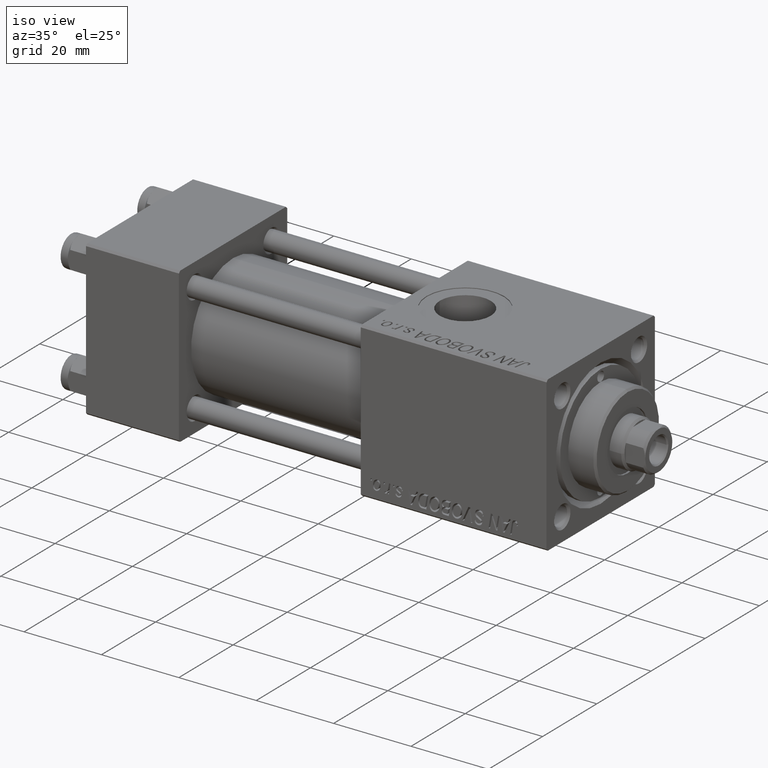
[diagram: clean part render]
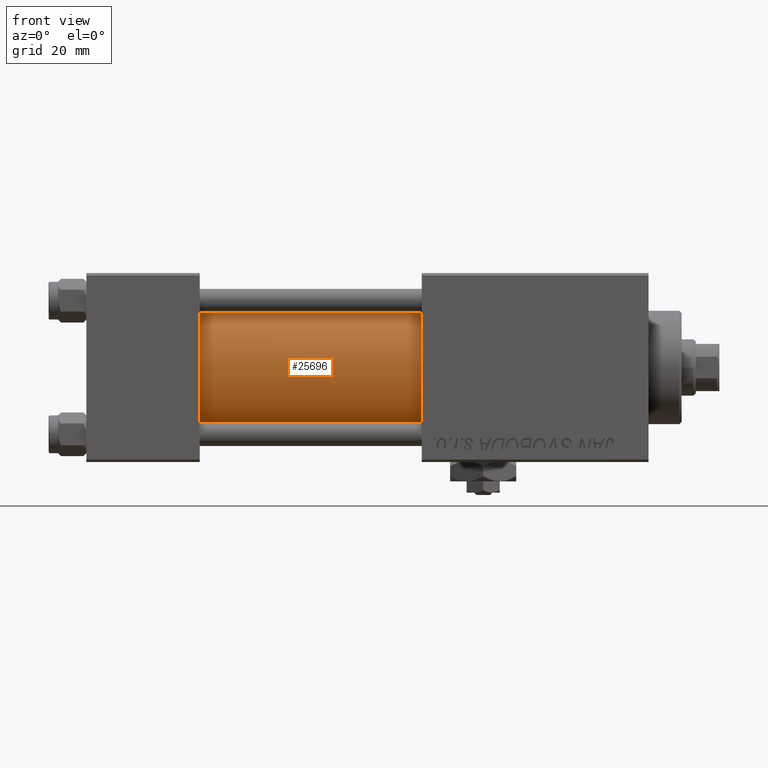
[diagram: tour spotlight — one face highlighted and labeled with its STEP entity id]
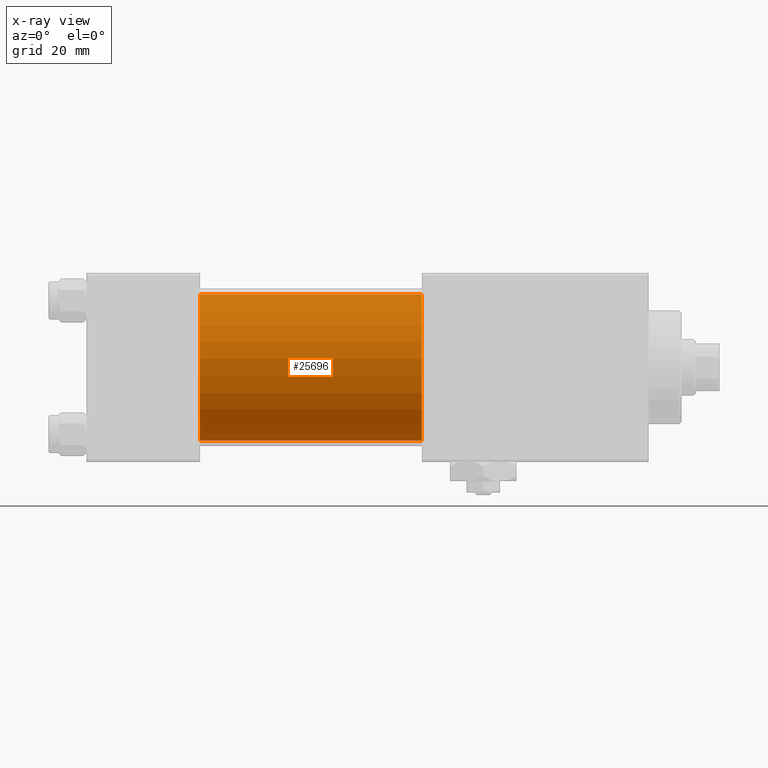
[diagram: x-ray of the same camera — body ghosted, this tour face saturated]
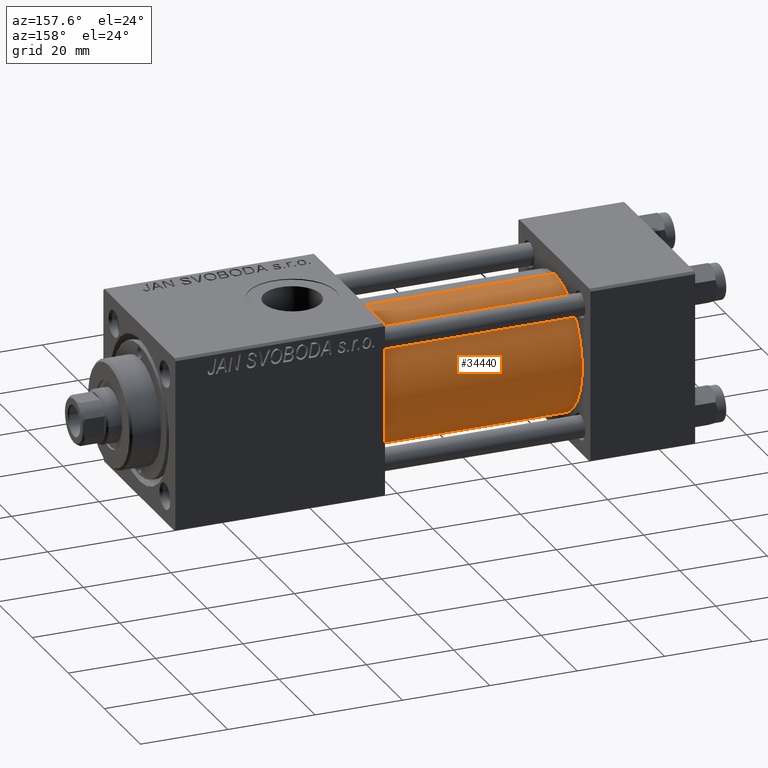
[diagram: tour spotlight — one face highlighted and labeled with its STEP entity id]
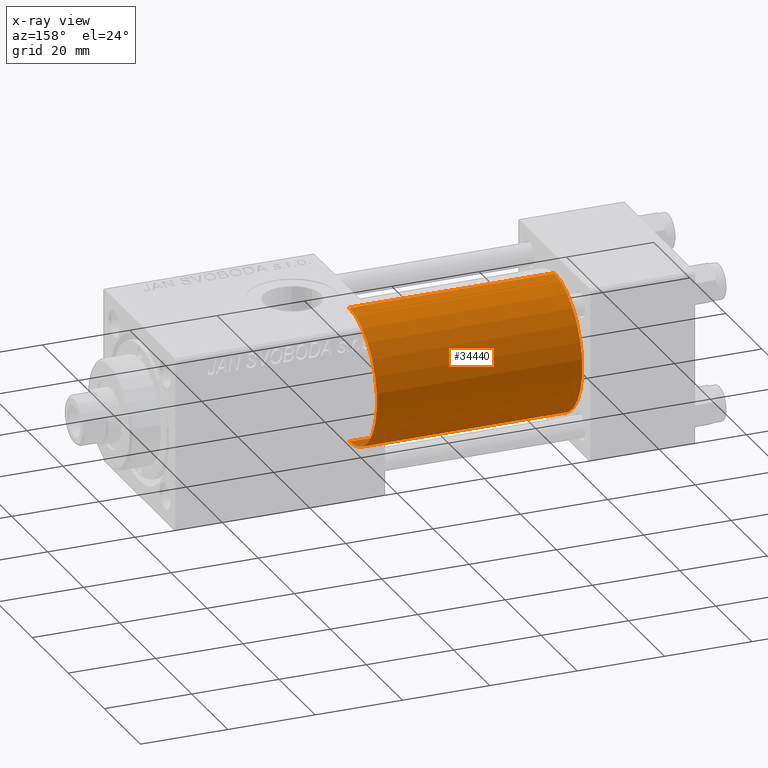
[diagram: x-ray of the same camera — body ghosted, this tour face saturated]
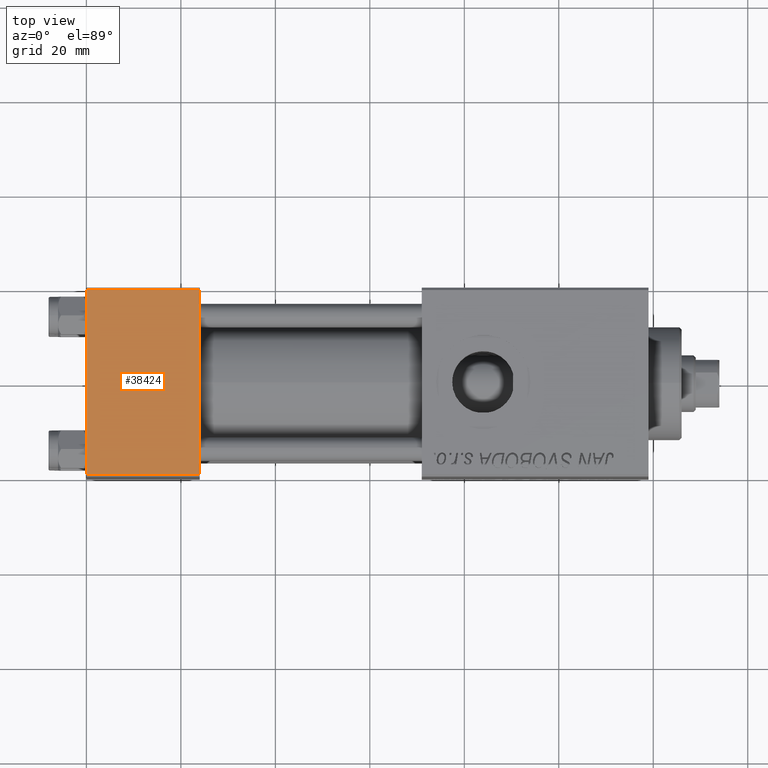
[diagram: tour spotlight — one face highlighted and labeled with its STEP entity id]
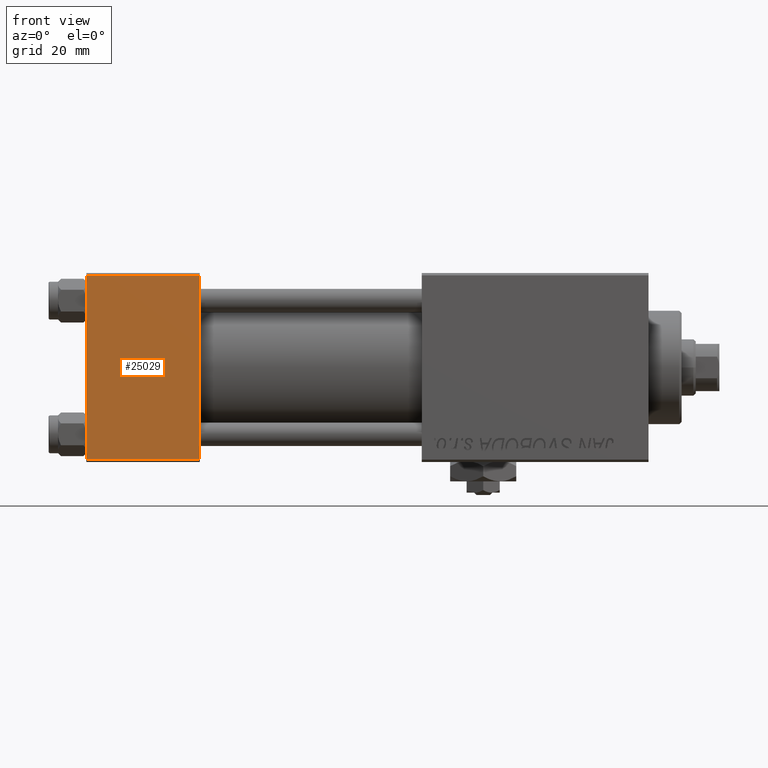
[diagram: tour spotlight — one face highlighted and labeled with its STEP entity id]
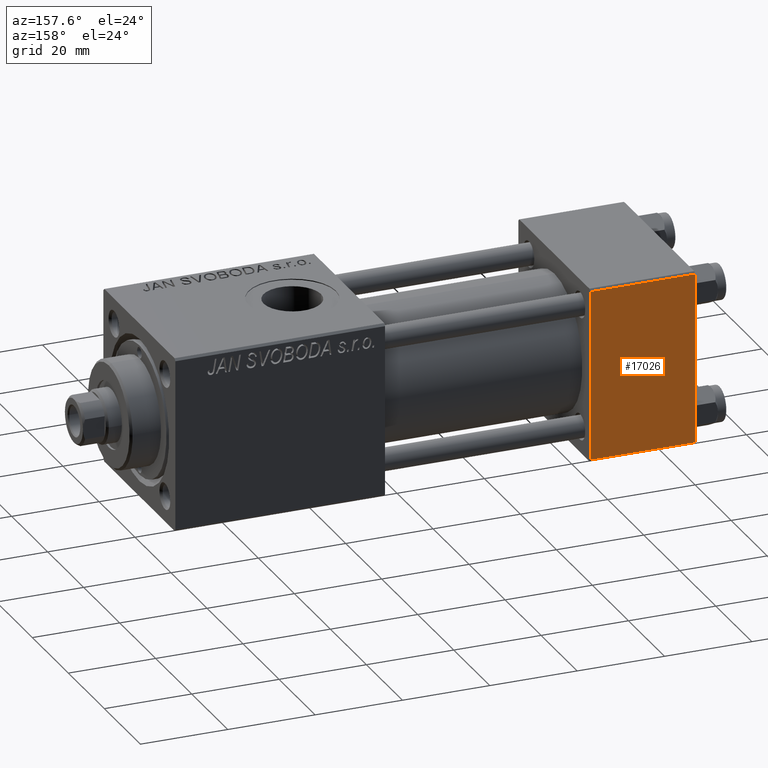
[diagram: tour spotlight — one face highlighted and labeled with its STEP entity id]
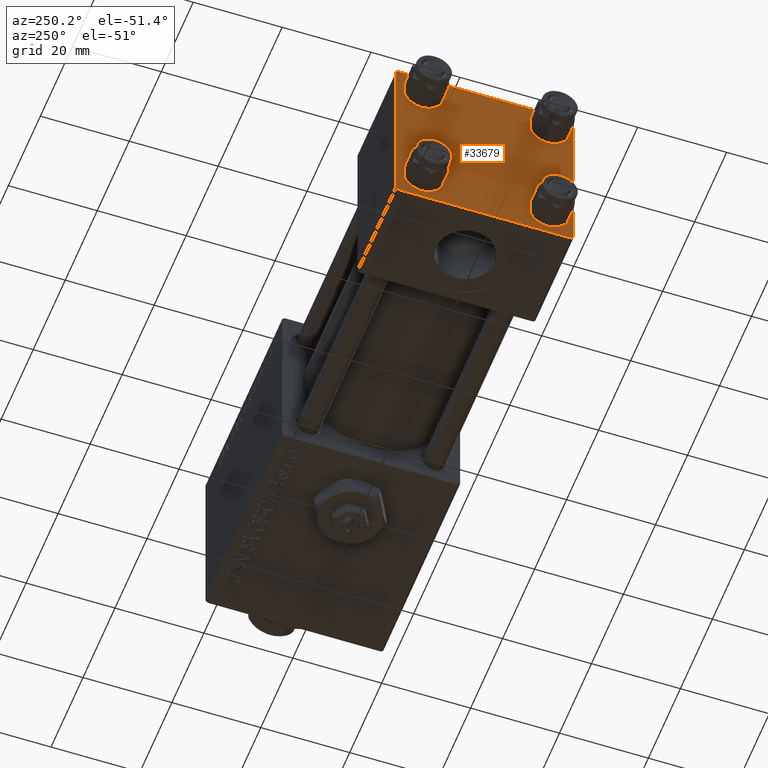
[diagram: tour spotlight — one face highlighted and labeled with its STEP entity id]
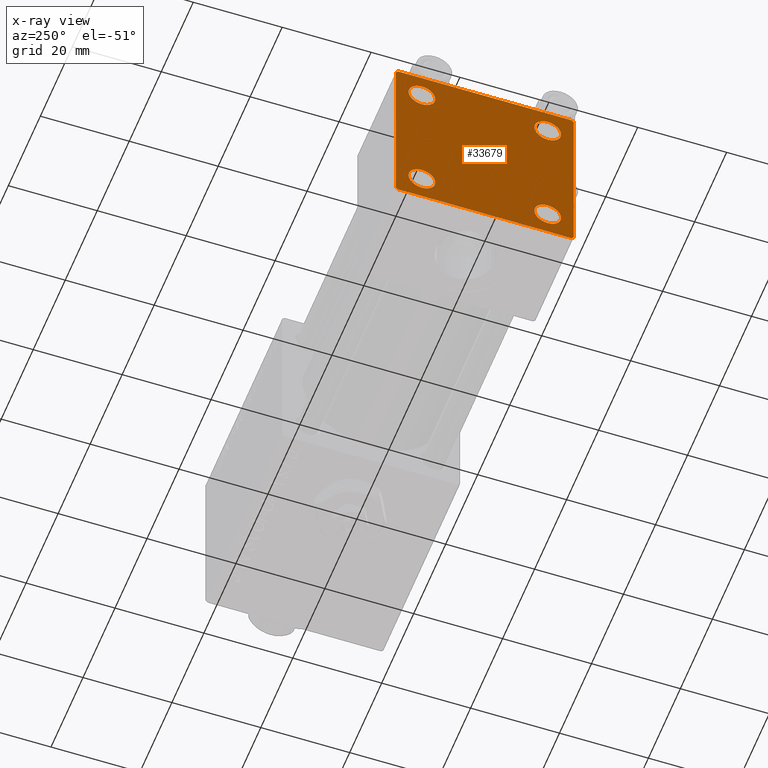
[diagram: x-ray of the same camera — body ghosted, this tour face saturated]
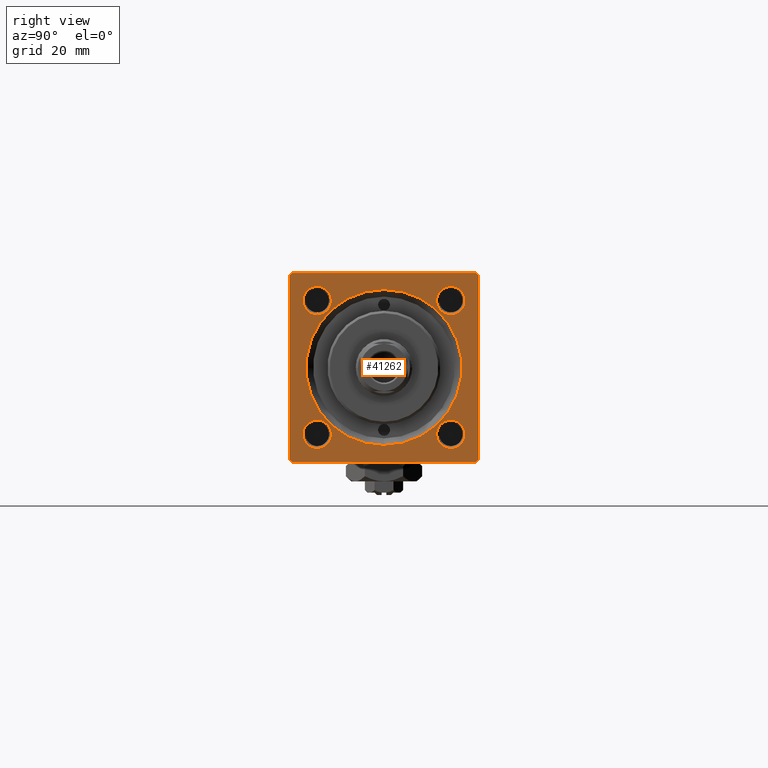
[diagram: tour spotlight — one face highlighted and labeled with its STEP entity id]
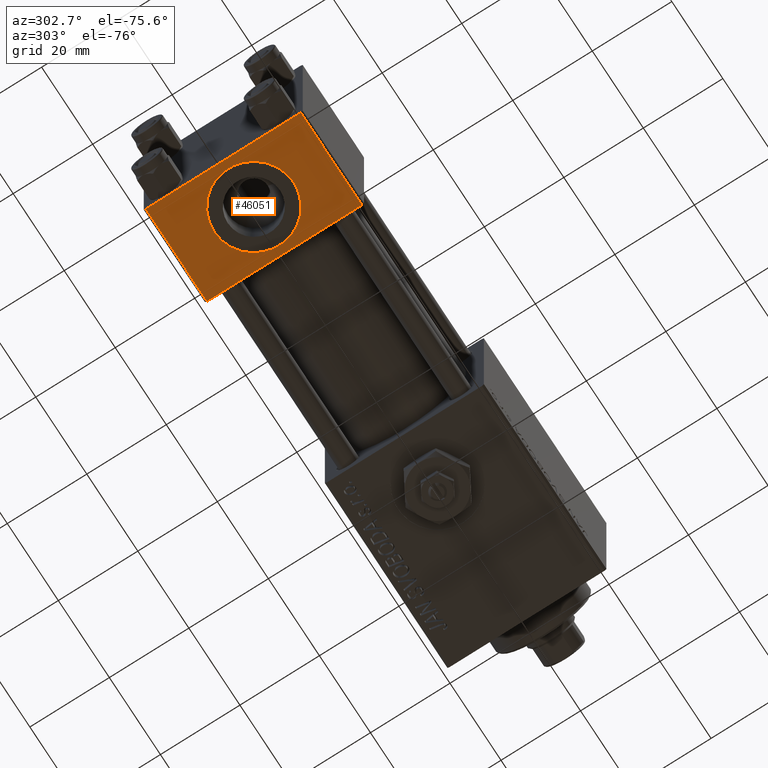
[diagram: tour spotlight — one face highlighted and labeled with its STEP entity id]
A machine part: a face-by-face anatomy tour. The part has 1201 B-rep faces; the first image is the clean iso view, then the 8 largest visible faces are spotlighted one at a time (largest first), each with its STEP entity span.

Face 1 — front view, entity #25696. An x-ray twin of the same camera follows (body ghosted, this face saturated) — the face is partly hidden behind the body. In plain terms, the highlighted cylindrical surface (partial cylindrical patch) has radius 15.5 mm, axis along (-1, -0, -0).
Definition (entity closure, byte-faithful):
#2584 = EDGE_CURVE ( 'NONE', #46412, #28854, #25037, .T. ) ;
#3623 = CARTESIAN_POINT ( 'NONE',  ( 24.00000000000000000, -2.602085213965210642E-15, 0.000000000000000000 ) ) ;
#5686 = EDGE_CURVE ( 'NONE', #28854, #25199, #14291, .T. ) ;
#5864 = DIRECTION ( 'NONE',  ( 1.000000000000000000, 0.000000000000000000, 0.000000000000000000 ) ) ;
#6575 = AXIS2_PLACEMENT_3D ( 'NONE', #18745, #5864, #14544 ) ;
#10042 = FACE_OUTER_BOUND ( 'NONE', #28196, .T. ) ;
#10310 = CARTESIAN_POINT ( 'NONE',  ( 71.00000000000001421, -2.602085213965210642E-15, 0.000000000000000000 ) ) ;
#14237 = LINE ( 'NONE', #25797, #38979 ) ;
#14291 = LINE ( 'NONE', #42117, #41760 ) ;
#14544 = DIRECTION ( 'NONE',  ( 0.000000000000000000, 0.000000000000000000, -1.000000000000000000 ) ) ;
#14797 = ORIENTED_EDGE ( 'NONE', *, *, #35212, .T. ) ;
#17805 = ORIENTED_EDGE ( 'NONE', *, *, #2584, .F. ) ;
#18418 = CIRCLE ( 'NONE', #47768, 15.50000000000000000 ) ;
#18745 = CARTESIAN_POINT ( 'NONE',  ( 71.00000000000001421, -2.602085213965210642E-15, 0.000000000000000000 ) ) ;
#19666 = DIRECTION ( 'NONE',  ( 0.000000000000000000, 0.000000000000000000, 1.000000000000000000 ) ) ;
#21421 = AXIS2_PLACEMENT_3D ( 'NONE', #10310, #26066, #42332 ) ;
#21858 = DIRECTION ( 'NONE',  ( -1.000000000000000000, -0.000000000000000000, -0.000000000000000000 ) ) ;
#24128 = DIRECTION ( 'NONE',  ( 1.000000000000000000, 0.000000000000000000, 0.000000000000000000 ) ) ;
#25037 = CIRCLE ( 'NONE', #6575, 15.50000000000000000 ) ;
#25199 = VERTEX_POINT ( 'NONE', #39828 ) ;
#25696 = ADVANCED_FACE ( 'NONE', ( #10042 ), #49455, .T. ) ;
#25797 = CARTESIAN_POINT ( 'NONE',  ( 71.00000000000001421, -2.602085213965210642E-15, 15.50000000000000000 ) ) ;
#26066 = DIRECTION ( 'NONE',  ( -1.000000000000000000, -0.000000000000000000, -0.000000000000000000 ) ) ;
#26262 = ORIENTED_EDGE ( 'NONE', *, *, #5686, .F. ) ;
#26822 = CARTESIAN_POINT ( 'NONE',  ( 71.00000000000001421, -7.038826752868131828E-16, -15.50000000000000000 ) ) ;
#26877 = DIRECTION ( 'NONE',  ( -1.000000000000000000, -0.000000000000000000, -0.000000000000000000 ) ) ;
#28196 = EDGE_LOOP ( 'NONE', ( #26262, #17805, #45951, #14797 ) ) ;
#28854 = VERTEX_POINT ( 'NONE', #26822 ) ;
#32190 = CARTESIAN_POINT ( 'NONE',  ( 71.00000000000001421, -2.602085213965210642E-15, 15.50000000000000000 ) ) ;
#35212 = EDGE_CURVE ( 'NONE', #49985, #25199, #18418, .T. ) ;
#38227 = CARTESIAN_POINT ( 'NONE',  ( 24.00000000000000000, -2.602085213965210642E-15, 15.50000000000000000 ) ) ;
#38979 = VECTOR ( 'NONE', #21858, 1000.000000000000000 ) ;
#39828 = CARTESIAN_POINT ( 'NONE',  ( 24.00000000000000000, -7.038826752868131828E-16, -15.50000000000000000 ) ) ;
#41760 = VECTOR ( 'NONE', #26877, 1000.000000000000000 ) ;
#42117 = CARTESIAN_POINT ( 'NONE',  ( 71.00000000000001421, -7.038826752868131828E-16, -15.50000000000000000 ) ) ;
#42332 = DIRECTION ( 'NONE',  ( 0.000000000000000000, 0.000000000000000000, 1.000000000000000000 ) ) ;
#45951 = ORIENTED_EDGE ( 'NONE', *, *, #51160, .T. ) ;
#46412 = VERTEX_POINT ( 'NONE', #32190 ) ;
#47768 = AXIS2_PLACEMENT_3D ( 'NONE', #3623, #24128, #19666 ) ;
#49455 = CYLINDRICAL_SURFACE ( 'NONE', #21421, 15.50000000000000000 ) ;
#49985 = VERTEX_POINT ( 'NONE', #38227 ) ;
#51160 = EDGE_CURVE ( 'NONE', #46412, #49985, #14237, .T. ) ;

Face 2 — auxiliary view, entity #34440. An x-ray twin of the same camera follows (body ghosted, this face saturated) — the face is partly hidden behind the body. In plain terms, the highlighted cylindrical surface (partial cylindrical patch) has radius 15.5 mm, axis along (-1, -0, -0).
Definition (entity closure, byte-faithful):
#2702 = CYLINDRICAL_SURFACE ( 'NONE', #36864, 15.50000000000000000 ) ;
#2892 = EDGE_CURVE ( 'NONE', #25199, #49985, #19066, .T. ) ;
#3273 = ORIENTED_EDGE ( 'NONE', *, *, #40558, .F. ) ;
#5179 = AXIS2_PLACEMENT_3D ( 'NONE', #17082, #9701, #25731 ) ;
#5686 = EDGE_CURVE ( 'NONE', #28854, #25199, #14291, .T. ) ;
#9701 = DIRECTION ( 'NONE',  ( 1.000000000000000000, 0.000000000000000000, 0.000000000000000000 ) ) ;
#12566 = DIRECTION ( 'NONE',  ( 0.000000000000000000, 0.000000000000000000, 1.000000000000000000 ) ) ;
#14237 = LINE ( 'NONE', #25797, #38979 ) ;
#14291 = LINE ( 'NONE', #42117, #41760 ) ;
#15704 = DIRECTION ( 'NONE',  ( 1.000000000000000000, 0.000000000000000000, 0.000000000000000000 ) ) ;
#17082 = CARTESIAN_POINT ( 'NONE',  ( 71.00000000000001421, -2.602085213965210642E-15, 0.000000000000000000 ) ) ;
#19042 = ORIENTED_EDGE ( 'NONE', *, *, #5686, .T. ) ;
#19066 = CIRCLE ( 'NONE', #29143, 15.50000000000000000 ) ;
#21858 = DIRECTION ( 'NONE',  ( -1.000000000000000000, -0.000000000000000000, -0.000000000000000000 ) ) ;
#25199 = VERTEX_POINT ( 'NONE', #39828 ) ;
#25731 = DIRECTION ( 'NONE',  ( 0.000000000000000000, 0.000000000000000000, -1.000000000000000000 ) ) ;
#25797 = CARTESIAN_POINT ( 'NONE',  ( 71.00000000000001421, -2.602085213965210642E-15, 15.50000000000000000 ) ) ;
#26667 = ORIENTED_EDGE ( 'NONE', *, *, #2892, .T. ) ;
#26822 = CARTESIAN_POINT ( 'NONE',  ( 71.00000000000001421, -7.038826752868131828E-16, -15.50000000000000000 ) ) ;
#26877 = DIRECTION ( 'NONE',  ( -1.000000000000000000, -0.000000000000000000, -0.000000000000000000 ) ) ;
#28854 = VERTEX_POINT ( 'NONE', #26822 ) ;
#29143 = AXIS2_PLACEMENT_3D ( 'NONE', #51698, #15704, #12566 ) ;
#30563 = CARTESIAN_POINT ( 'NONE',  ( 71.00000000000001421, -2.602085213965210642E-15, 0.000000000000000000 ) ) ;
#32190 = CARTESIAN_POINT ( 'NONE',  ( 71.00000000000001421, -2.602085213965210642E-15, 15.50000000000000000 ) ) ;
#34440 = ADVANCED_FACE ( 'NONE', ( #34751 ), #2702, .T. ) ;
#34751 = FACE_OUTER_BOUND ( 'NONE', #50503, .T. ) ;
#36864 = AXIS2_PLACEMENT_3D ( 'NONE', #30563, #47095, #38948 ) ;
#38227 = CARTESIAN_POINT ( 'NONE',  ( 24.00000000000000000, -2.602085213965210642E-15, 15.50000000000000000 ) ) ;
#38948 = DIRECTION ( 'NONE',  ( 0.000000000000000000, 0.000000000000000000, 1.000000000000000000 ) ) ;
#38979 = VECTOR ( 'NONE', #21858, 1000.000000000000000 ) ;
#38992 = ORIENTED_EDGE ( 'NONE', *, *, #51160, .F. ) ;
#39828 = CARTESIAN_POINT ( 'NONE',  ( 24.00000000000000000, -7.038826752868131828E-16, -15.50000000000000000 ) ) ;
#40558 = EDGE_CURVE ( 'NONE', #28854, #46412, #42051, .T. ) ;
#41760 = VECTOR ( 'NONE', #26877, 1000.000000000000000 ) ;
#42051 = CIRCLE ( 'NONE', #5179, 15.50000000000000000 ) ;
#42117 = CARTESIAN_POINT ( 'NONE',  ( 71.00000000000001421, -7.038826752868131828E-16, -15.50000000000000000 ) ) ;
#46412 = VERTEX_POINT ( 'NONE', #32190 ) ;
#47095 = DIRECTION ( 'NONE',  ( -1.000000000000000000, -0.000000000000000000, -0.000000000000000000 ) ) ;
#49985 = VERTEX_POINT ( 'NONE', #38227 ) ;
#50503 = EDGE_LOOP ( 'NONE', ( #3273, #19042, #26667, #38992 ) ) ;
#51160 = EDGE_CURVE ( 'NONE', #46412, #49985, #14237, .T. ) ;
#51698 = CARTESIAN_POINT ( 'NONE',  ( 24.00000000000000000, -2.602085213965210642E-15, 0.000000000000000000 ) ) ;

Face 3 — top view, entity #38424. In plain terms, the highlighted planar face has unit normal (0, 0, -1).
Definition (entity closure, byte-faithful):
#281 = VERTEX_POINT ( 'NONE', #12471 ) ;
#2146 = CARTESIAN_POINT ( 'NONE',  ( 24.00000000000000000, 20.00000000000000000, 20.00000000000000000 ) ) ;
#2786 = EDGE_CURVE ( 'NONE', #281, #8516, #31720, .T. ) ;
#3988 = VERTEX_POINT ( 'NONE', #37016 ) ;
#6692 = ORIENTED_EDGE ( 'NONE', *, *, #40968, .F. ) ;
#8516 = VERTEX_POINT ( 'NONE', #36771 ) ;
#8617 = CARTESIAN_POINT ( 'NONE',  ( 0.000000000000000000, 20.00000000000000000, 20.00000000000000000 ) ) ;
#8993 = CARTESIAN_POINT ( 'NONE',  ( 24.00000000000000000, 19.50000000000000000, 20.00000000000000000 ) ) ;
#10515 = LINE ( 'NONE', #23109, #26992 ) ;
#12471 = CARTESIAN_POINT ( 'NONE',  ( 0.000000000000000000, 19.50000000000000000, 20.00000000000000000 ) ) ;
#13624 = ORIENTED_EDGE ( 'NONE', *, *, #2786, .T. ) ;
#13756 = EDGE_CURVE ( 'NONE', #8516, #3988, #10515, .T. ) ;
#14034 = VECTOR ( 'NONE', #48018, 1000.000000000000000 ) ;
#14457 = CARTESIAN_POINT ( 'NONE',  ( 0.000000000000000000, 19.50000000000000000, 20.00000000000000000 ) ) ;
#16860 = EDGE_CURVE ( 'NONE', #42710, #281, #36807, .T. ) ;
#19164 = DIRECTION ( 'NONE',  ( 1.000000000000000000, 0.000000000000000000, 0.000000000000000000 ) ) ;
#21854 = LINE ( 'NONE', #42057, #42948 ) ;
#21859 = AXIS2_PLACEMENT_3D ( 'NONE', #2146, #34190, #50227 ) ;
#22128 = PLANE ( 'NONE',  #21859 ) ;
#23109 = CARTESIAN_POINT ( 'NONE',  ( 24.00000000000000000, -19.49999999999999289, 19.99999999999998934 ) ) ;
#26992 = VECTOR ( 'NONE', #19164, 1000.000000000000000 ) ;
#27349 = FACE_OUTER_BOUND ( 'NONE', #29114, .T. ) ;
#29114 = EDGE_LOOP ( 'NONE', ( #13624, #47001, #6692, #46890 ) ) ;
#29214 = DIRECTION ( 'NONE',  ( 0.000000000000000000, -1.000000000000000000, -2.602085213965210149E-16 ) ) ;
#31720 = LINE ( 'NONE', #8617, #14034 ) ;
#34190 = DIRECTION ( 'NONE',  ( 0.000000000000000000, 2.602085213965210149E-16, -1.000000000000000000 ) ) ;
#36771 = CARTESIAN_POINT ( 'NONE',  ( 0.000000000000000000, -19.49999999999999289, 19.99999999999998934 ) ) ;
#36807 = LINE ( 'NONE', #14457, #37044 ) ;
#37016 = CARTESIAN_POINT ( 'NONE',  ( 24.00000000000000000, -19.49999999999999289, 19.99999999999998934 ) ) ;
#37044 = VECTOR ( 'NONE', #45712, 1000.000000000000000 ) ;
#38424 = ADVANCED_FACE ( 'NONE', ( #27349 ), #22128, .F. ) ;
#40968 = EDGE_CURVE ( 'NONE', #42710, #3988, #21854, .T. ) ;
#42057 = CARTESIAN_POINT ( 'NONE',  ( 24.00000000000000000, 20.00000000000000000, 20.00000000000000000 ) ) ;
#42710 = VERTEX_POINT ( 'NONE', #8993 ) ;
#42948 = VECTOR ( 'NONE', #29214, 1000.000000000000000 ) ;
#45712 = DIRECTION ( 'NONE',  ( -1.000000000000000000, 0.000000000000000000, 0.000000000000000000 ) ) ;
#46890 = ORIENTED_EDGE ( 'NONE', *, *, #16860, .T. ) ;
#47001 = ORIENTED_EDGE ( 'NONE', *, *, #13756, .T. ) ;
#48018 = DIRECTION ( 'NONE',  ( 0.000000000000000000, -1.000000000000000000, -2.602085213965210149E-16 ) ) ;
#50227 = DIRECTION ( 'NONE',  ( 0.000000000000000000, 1.000000000000000000, 2.602085213965210149E-16 ) ) ;

Face 4 — front view, entity #25029. In plain terms, the highlighted planar face has unit normal (0, 1, 0).
Definition (entity closure, byte-faithful):
#559 = LINE ( 'NONE', #32348, #48805 ) ;
#5080 = DIRECTION ( 'NONE',  ( -1.000000000000000000, 0.000000000000000000, 0.000000000000000000 ) ) ;
#8818 = FACE_OUTER_BOUND ( 'NONE', #43865, .T. ) ;
#9740 = ORIENTED_EDGE ( 'NONE', *, *, #13475, .F. ) ;
#10486 = VERTEX_POINT ( 'NONE', #13593 ) ;
#13475 = EDGE_CURVE ( 'NONE', #20741, #35220, #559, .T. ) ;
#13593 = CARTESIAN_POINT ( 'NONE',  ( 0.000000000000000000, -20.00000000000000000, -19.49999999999999645 ) ) ;
#14705 = CARTESIAN_POINT ( 'NONE',  ( 0.000000000000000000, -20.00000000000000355, 19.99999999999998934 ) ) ;
#16180 = VECTOR ( 'NONE', #49154, 1000.000000000000000 ) ;
#16777 = EDGE_CURVE ( 'NONE', #10486, #35220, #33373, .T. ) ;
#17111 = CARTESIAN_POINT ( 'NONE',  ( 24.00000000000000000, -20.00000000000000000, -19.49999999999999645 ) ) ;
#20648 = DIRECTION ( 'NONE',  ( -0.000000000000000000, 1.000000000000000000, 8.673617379884036705E-17 ) ) ;
#20741 = VERTEX_POINT ( 'NONE', #47355 ) ;
#23356 = ORIENTED_EDGE ( 'NONE', *, *, #30906, .T. ) ;
#23957 = DIRECTION ( 'NONE',  ( 0.000000000000000000, 8.673617379884036705E-17, -1.000000000000000000 ) ) ;
#24103 = ORIENTED_EDGE ( 'NONE', *, *, #16777, .T. ) ;
#25029 = ADVANCED_FACE ( 'NONE', ( #8818 ), #25093, .F. ) ;
#25093 = PLANE ( 'NONE',  #38158 ) ;
#30906 = EDGE_CURVE ( 'NONE', #43750, #10486, #38334, .T. ) ;
#32348 = CARTESIAN_POINT ( 'NONE',  ( 24.00000000000000000, -20.00000000000000355, 19.99999999999998934 ) ) ;
#32968 = CARTESIAN_POINT ( 'NONE',  ( 24.00000000000000000, -20.00000000000000355, 19.99999999999998934 ) ) ;
#33180 = LINE ( 'NONE', #45005, #49796 ) ;
#33373 = LINE ( 'NONE', #17111, #16180 ) ;
#35220 = VERTEX_POINT ( 'NONE', #48025 ) ;
#37813 = DIRECTION ( 'NONE',  ( 0.000000000000000000, 8.673617379884036705E-17, -1.000000000000000000 ) ) ;
#38158 = AXIS2_PLACEMENT_3D ( 'NONE', #32968, #20648, #44788 ) ;
#38334 = LINE ( 'NONE', #14705, #51957 ) ;
#43750 = VERTEX_POINT ( 'NONE', #47036 ) ;
#43865 = EDGE_LOOP ( 'NONE', ( #23356, #24103, #9740, #46666 ) ) ;
#44788 = DIRECTION ( 'NONE',  ( 0.000000000000000000, -8.673617379884036705E-17, 1.000000000000000000 ) ) ;
#45005 = CARTESIAN_POINT ( 'NONE',  ( 24.00000000000000000, -20.00000000000000355, 19.49999999999998224 ) ) ;
#46666 = ORIENTED_EDGE ( 'NONE', *, *, #48603, .T. ) ;
#47036 = CARTESIAN_POINT ( 'NONE',  ( 0.000000000000000000, -20.00000000000000355, 19.49999999999998224 ) ) ;
#47355 = CARTESIAN_POINT ( 'NONE',  ( 24.00000000000000000, -20.00000000000000355, 19.49999999999998224 ) ) ;
#48025 = CARTESIAN_POINT ( 'NONE',  ( 24.00000000000000000, -20.00000000000000000, -19.49999999999999645 ) ) ;
#48603 = EDGE_CURVE ( 'NONE', #20741, #43750, #33180, .T. ) ;
#48805 = VECTOR ( 'NONE', #23957, 1000.000000000000000 ) ;
#49154 = DIRECTION ( 'NONE',  ( 1.000000000000000000, 0.000000000000000000, 0.000000000000000000 ) ) ;
#49796 = VECTOR ( 'NONE', #5080, 1000.000000000000000 ) ;
#51957 = VECTOR ( 'NONE', #37813, 1000.000000000000000 ) ;

Face 5 — auxiliary view, entity #17026. In plain terms, the highlighted planar face has unit normal (0, 1, 0).
Definition (entity closure, byte-faithful):
#57 = CARTESIAN_POINT ( 'NONE',  ( 24.00000000000000000, 20.00000000000000000, 19.49999999999999289 ) ) ;
#611 = ORIENTED_EDGE ( 'NONE', *, *, #46885, .T. ) ;
#1246 = DIRECTION ( 'NONE',  ( -0.000000000000000000, 1.000000000000000000, 0.000000000000000000 ) ) ;
#4971 = CARTESIAN_POINT ( 'NONE',  ( 0.000000000000000000, 20.00000000000000000, 20.00000000000000000 ) ) ;
#5322 = VECTOR ( 'NONE', #8406, 1000.000000000000000 ) ;
#7893 = ORIENTED_EDGE ( 'NONE', *, *, #17136, .T. ) ;
#8406 = DIRECTION ( 'NONE',  ( 0.000000000000000000, 0.000000000000000000, -1.000000000000000000 ) ) ;
#10627 = ORIENTED_EDGE ( 'NONE', *, *, #44905, .F. ) ;
#11860 = CARTESIAN_POINT ( 'NONE',  ( 0.000000000000000000, 20.00000000000000000, 19.49999999999999289 ) ) ;
#13643 = VECTOR ( 'NONE', #37346, 1000.000000000000000 ) ;
#14225 = LINE ( 'NONE', #33155, #13643 ) ;
#14477 = EDGE_CURVE ( 'NONE', #25960, #20775, #41731, .T. ) ;
#17026 = ADVANCED_FACE ( 'NONE', ( #30209 ), #46229, .T. ) ;
#17136 = EDGE_CURVE ( 'NONE', #39198, #21749, #44862, .T. ) ;
#20775 = VERTEX_POINT ( 'NONE', #57 ) ;
#20969 = CARTESIAN_POINT ( 'NONE',  ( 24.00000000000000000, 20.00000000000000000, -19.50000000000002132 ) ) ;
#21478 = CARTESIAN_POINT ( 'NONE',  ( 24.00000000000000000, 20.00000000000000000, 20.00000000000000000 ) ) ;
#21749 = VERTEX_POINT ( 'NONE', #26809 ) ;
#21943 = VECTOR ( 'NONE', #36976, 1000.000000000000000 ) ;
#23634 = AXIS2_PLACEMENT_3D ( 'NONE', #21478, #1246, #48808 ) ;
#25960 = VERTEX_POINT ( 'NONE', #11860 ) ;
#26191 = ORIENTED_EDGE ( 'NONE', *, *, #14477, .T. ) ;
#26809 = CARTESIAN_POINT ( 'NONE',  ( 0.000000000000000000, 20.00000000000000000, -19.50000000000002132 ) ) ;
#30209 = FACE_OUTER_BOUND ( 'NONE', #46038, .T. ) ;
#33076 = LINE ( 'NONE', #4971, #5322 ) ;
#33155 = CARTESIAN_POINT ( 'NONE',  ( 24.00000000000000000, 20.00000000000000000, 20.00000000000000000 ) ) ;
#34537 = VECTOR ( 'NONE', #44205, 1000.000000000000000 ) ;
#36848 = CARTESIAN_POINT ( 'NONE',  ( 24.00000000000000000, 20.00000000000000000, 19.49999999999999289 ) ) ;
#36976 = DIRECTION ( 'NONE',  ( -1.000000000000000000, 0.000000000000000000, 0.000000000000000000 ) ) ;
#37346 = DIRECTION ( 'NONE',  ( 0.000000000000000000, 0.000000000000000000, -1.000000000000000000 ) ) ;
#39198 = VERTEX_POINT ( 'NONE', #48925 ) ;
#41731 = LINE ( 'NONE', #36848, #34537 ) ;
#44205 = DIRECTION ( 'NONE',  ( 1.000000000000000000, 0.000000000000000000, 0.000000000000000000 ) ) ;
#44862 = LINE ( 'NONE', #20969, #21943 ) ;
#44905 = EDGE_CURVE ( 'NONE', #25960, #21749, #33076, .T. ) ;
#46038 = EDGE_LOOP ( 'NONE', ( #611, #7893, #10627, #26191 ) ) ;
#46229 = PLANE ( 'NONE',  #23634 ) ;
#46885 = EDGE_CURVE ( 'NONE', #20775, #39198, #14225, .T. ) ;
#48808 = DIRECTION ( 'NONE',  ( 0.000000000000000000, -0.000000000000000000, 1.000000000000000000 ) ) ;
#48925 = CARTESIAN_POINT ( 'NONE',  ( 24.00000000000000000, 20.00000000000000000, -19.50000000000002132 ) ) ;

Face 6 — auxiliary view, entity #33679. An x-ray twin of the same camera follows (body ghosted, this face saturated) — the face is partly hidden behind the body. In plain terms, the highlighted planar face has unit normal (-1, 0, 0).
Definition (entity closure, byte-faithful):
#102 = VERTEX_POINT ( 'NONE', #40501 ) ;
#281 = VERTEX_POINT ( 'NONE', #12471 ) ;
#285 = ORIENTED_EDGE ( 'NONE', *, *, #2706, .T. ) ;
#1067 = CARTESIAN_POINT ( 'NONE',  ( 0.000000000000000000, -14.14999999999999503, -14.15000000000000391 ) ) ;
#1186 = VERTEX_POINT ( 'NONE', #22531 ) ;
#1859 = VECTOR ( 'NONE', #18287, 1000.000000000000114 ) ;
#2706 = EDGE_CURVE ( 'NONE', #21749, #3627, #49620, .T. ) ;
#2786 = EDGE_CURVE ( 'NONE', #281, #8516, #31720, .T. ) ;
#2938 = DIRECTION ( 'NONE',  ( 0.000000000000000000, 0.000000000000000000, 1.000000000000000000 ) ) ;
#3561 = VECTOR ( 'NONE', #25265, 1000.000000000000000 ) ;
#3627 = VERTEX_POINT ( 'NONE', #6977 ) ;
#4844 = FACE_OUTER_BOUND ( 'NONE', #51606, .T. ) ;
#4971 = CARTESIAN_POINT ( 'NONE',  ( 0.000000000000000000, 20.00000000000000000, 20.00000000000000000 ) ) ;
#5322 = VECTOR ( 'NONE', #8406, 1000.000000000000000 ) ;
#5757 = AXIS2_PLACEMENT_3D ( 'NONE', #25587, #9813, #25832 ) ;
#5770 = DIRECTION ( 'NONE',  ( 1.000000000000000000, 0.000000000000000000, 0.000000000000000000 ) ) ;
#5903 = ORIENTED_EDGE ( 'NONE', *, *, #28068, .T. ) ;
#6400 = DIRECTION ( 'NONE',  ( 1.000000000000000000, 0.000000000000000000, 0.000000000000000000 ) ) ;
#6977 = CARTESIAN_POINT ( 'NONE',  ( 0.000000000000000000, 19.50000000000000711, -20.00000000000000711 ) ) ;
#8406 = DIRECTION ( 'NONE',  ( 0.000000000000000000, 0.000000000000000000, -1.000000000000000000 ) ) ;
#8516 = VERTEX_POINT ( 'NONE', #36771 ) ;
#8593 = ORIENTED_EDGE ( 'NONE', *, *, #18449, .T. ) ;
#8617 = CARTESIAN_POINT ( 'NONE',  ( 0.000000000000000000, 20.00000000000000000, 20.00000000000000000 ) ) ;
#9744 = AXIS2_PLACEMENT_3D ( 'NONE', #23608, #28315, #51979 ) ;
#9813 = DIRECTION ( 'NONE',  ( -1.000000000000000000, 0.000000000000000000, -0.000000000000000000 ) ) ;
#10283 = CARTESIAN_POINT ( 'NONE',  ( 0.000000000000000000, -14.14999999999999503, 14.15000000000000391 ) ) ;
#10486 = VERTEX_POINT ( 'NONE', #13593 ) ;
#10522 = CARTESIAN_POINT ( 'NONE',  ( 0.000000000000000000, -14.14999999999999503, 14.15000000000000391 ) ) ;
#10701 = ORIENTED_EDGE ( 'NONE', *, *, #44905, .T. ) ;
#11860 = CARTESIAN_POINT ( 'NONE',  ( 0.000000000000000000, 20.00000000000000000, 19.49999999999999289 ) ) ;
#11938 = AXIS2_PLACEMENT_3D ( 'NONE', #47853, #31573, #2938 ) ;
#12471 = CARTESIAN_POINT ( 'NONE',  ( 0.000000000000000000, 19.50000000000000000, 20.00000000000000000 ) ) ;
#12804 = ORIENTED_EDGE ( 'NONE', *, *, #48207, .T. ) ;
#13004 = FACE_BOUND ( 'NONE', #21752, .T. ) ;
#13358 = CIRCLE ( 'NONE', #30964, 2.999999999999983569 ) ;
#13593 = CARTESIAN_POINT ( 'NONE',  ( 0.000000000000000000, -20.00000000000000000, -19.49999999999999645 ) ) ;
#13647 = CARTESIAN_POINT ( 'NONE',  ( 0.000000000000000000, -14.14999999999999503, 11.15000000000002345 ) ) ;
#13950 = CIRCLE ( 'NONE', #9744, 3.000000000000004441 ) ;
#14034 = VECTOR ( 'NONE', #48018, 1000.000000000000000 ) ;
#14705 = CARTESIAN_POINT ( 'NONE',  ( 0.000000000000000000, -20.00000000000000355, 19.99999999999998934 ) ) ;
#15675 = ORIENTED_EDGE ( 'NONE', *, *, #32989, .T. ) ;
#15954 = LINE ( 'NONE', #47217, #20431 ) ;
#17189 = FACE_BOUND ( 'NONE', #39177, .T. ) ;
#18287 = DIRECTION ( 'NONE',  ( -0.000000000000000000, 0.7071067811865500152, 0.7071067811865451302 ) ) ;
#18449 = EDGE_CURVE ( 'NONE', #42639, #36790, #19470, .T. ) ;
#19320 = CARTESIAN_POINT ( 'NONE',  ( -0.000000000000000000, -19.74999999999992539, 19.75000000000006395 ) ) ;
#19358 = EDGE_CURVE ( 'NONE', #3627, #1186, #48656, .T. ) ;
#19470 = CIRCLE ( 'NONE', #11938, 2.999999999999983569 ) ;
#19849 = CIRCLE ( 'NONE', #49197, 2.999999999999983569 ) ;
#19884 = ORIENTED_EDGE ( 'NONE', *, *, #20233, .T. ) ;
#20010 = VECTOR ( 'NONE', #25465, 1000.000000000000000 ) ;
#20233 = EDGE_CURVE ( 'NONE', #281, #25960, #15954, .T. ) ;
#20431 = VECTOR ( 'NONE', #31190, 999.9999999999998863 ) ;
#20872 = CIRCLE ( 'NONE', #27555, 2.999999999999983569 ) ;
#21232 = VECTOR ( 'NONE', #39997, 1000.000000000000000 ) ;
#21449 = EDGE_CURVE ( 'NONE', #30074, #102, #33843, .T. ) ;
#21749 = VERTEX_POINT ( 'NONE', #26809 ) ;
#21752 = EDGE_LOOP ( 'NONE', ( #15675, #48632 ) ) ;
#22531 = CARTESIAN_POINT ( 'NONE',  ( 0.000000000000000000, -19.50000000000000711, -20.00000000000000000 ) ) ;
#23608 = CARTESIAN_POINT ( 'NONE',  ( 0.000000000000000000, -14.14999999999999503, -14.15000000000000391 ) ) ;
#25265 = DIRECTION ( 'NONE',  ( 0.000000000000000000, -1.000000000000000000, 1.734723475976807094E-16 ) ) ;
#25465 = DIRECTION ( 'NONE',  ( -0.000000000000000000, -0.7071067811865524577, -0.7071067811865426878 ) ) ;
#25587 = CARTESIAN_POINT ( 'NONE',  ( 0.000000000000000000, 0.000000000000000000, 0.000000000000000000 ) ) ;
#25832 = DIRECTION ( 'NONE',  ( -0.000000000000000000, 0.000000000000000000, 1.000000000000000000 ) ) ;
#25846 = CARTESIAN_POINT ( 'NONE',  ( 0.000000000000000000, 14.14999999999999858, 14.15000000000000036 ) ) ;
#25960 = VERTEX_POINT ( 'NONE', #11860 ) ;
#26034 = EDGE_CURVE ( 'NONE', #29770, #45319, #29797, .T. ) ;
#26453 = CARTESIAN_POINT ( 'NONE',  ( 0.000000000000000000, 14.14999999999999858, 14.15000000000000036 ) ) ;
#26538 = DIRECTION ( 'NONE',  ( 1.000000000000000000, 0.000000000000000000, 0.000000000000000000 ) ) ;
#26809 = CARTESIAN_POINT ( 'NONE',  ( 0.000000000000000000, 20.00000000000000000, -19.50000000000002132 ) ) ;
#27274 = EDGE_LOOP ( 'NONE', ( #5903, #8593 ) ) ;
#27555 = AXIS2_PLACEMENT_3D ( 'NONE', #10522, #26538, #35181 ) ;
#27908 = CARTESIAN_POINT ( 'NONE',  ( 0.000000000000000000, 14.14999999999999858, -17.14999999999998437 ) ) ;
#27944 = ORIENTED_EDGE ( 'NONE', *, *, #21449, .T. ) ;
#28068 = EDGE_CURVE ( 'NONE', #36790, #42639, #19849, .T. ) ;
#28102 = EDGE_CURVE ( 'NONE', #45319, #29770, #13950, .T. ) ;
#28254 = CARTESIAN_POINT ( 'NONE',  ( 0.000000000000000000, 14.14999999999999858, -11.15000000000001812 ) ) ;
#28315 = DIRECTION ( 'NONE',  ( 1.000000000000000000, 0.000000000000000000, 0.000000000000000000 ) ) ;
#28597 = CARTESIAN_POINT ( 'NONE',  ( 0.000000000000000000, 14.14999999999999858, 17.14999999999998437 ) ) ;
#29770 = VERTEX_POINT ( 'NONE', #47837 ) ;
#29797 = CIRCLE ( 'NONE', #32324, 3.000000000000004441 ) ;
#30074 = VERTEX_POINT ( 'NONE', #28597 ) ;
#30124 = DIRECTION ( 'NONE',  ( 1.000000000000000000, 0.000000000000000000, 0.000000000000000000 ) ) ;
#30410 = EDGE_LOOP ( 'NONE', ( #27944, #12804 ) ) ;
#30512 = CIRCLE ( 'NONE', #33838, 2.999999999999983569 ) ;
#30906 = EDGE_CURVE ( 'NONE', #43750, #10486, #38334, .T. ) ;
#30964 = AXIS2_PLACEMENT_3D ( 'NONE', #10283, #45992, #34944 ) ;
#31190 = DIRECTION ( 'NONE',  ( 0.000000000000000000, 0.7071067811865425767, -0.7071067811865525687 ) ) ;
#31573 = DIRECTION ( 'NONE',  ( 1.000000000000000000, 0.000000000000000000, 0.000000000000000000 ) ) ;
#31654 = CARTESIAN_POINT ( 'NONE',  ( 0.000000000000000000, -14.14999999999999503, -11.15000000000000036 ) ) ;
#31720 = LINE ( 'NONE', #8617, #14034 ) ;
#32121 = CARTESIAN_POINT ( 'NONE',  ( 0.000000000000000000, -19.75000000000020961, -19.74999999999979394 ) ) ;
#32324 = AXIS2_PLACEMENT_3D ( 'NONE', #1067, #5770, #33615 ) ;
#32684 = ORIENTED_EDGE ( 'NONE', *, *, #30906, .F. ) ;
#32989 = EDGE_CURVE ( 'NONE', #42294, #36369, #20872, .T. ) ;
#33076 = LINE ( 'NONE', #4971, #5322 ) ;
#33463 = DIRECTION ( 'NONE',  ( 0.000000000000000000, 0.000000000000000000, 1.000000000000000000 ) ) ;
#33615 = DIRECTION ( 'NONE',  ( 0.000000000000000000, 0.000000000000000000, 1.000000000000000000 ) ) ;
#33679 = ADVANCED_FACE ( 'NONE', ( #13004, #17189, #36888, #45026, #4844 ), #45794, .T. ) ;
#33838 = AXIS2_PLACEMENT_3D ( 'NONE', #26453, #30124, #42707 ) ;
#33841 = CARTESIAN_POINT ( 'NONE',  ( -0.000000000000000000, 19.74999999999986855, -19.75000000000014211 ) ) ;
#33843 = CIRCLE ( 'NONE', #47281, 2.999999999999983569 ) ;
#33952 = ORIENTED_EDGE ( 'NONE', *, *, #42176, .T. ) ;
#34553 = LINE ( 'NONE', #19320, #1859 ) ;
#34809 = EDGE_CURVE ( 'NONE', #36369, #42294, #13358, .T. ) ;
#34944 = DIRECTION ( 'NONE',  ( 0.000000000000000000, 0.000000000000000000, 1.000000000000000000 ) ) ;
#35181 = DIRECTION ( 'NONE',  ( 0.000000000000000000, 0.000000000000000000, 1.000000000000000000 ) ) ;
#36369 = VERTEX_POINT ( 'NONE', #13647 ) ;
#36771 = CARTESIAN_POINT ( 'NONE',  ( 0.000000000000000000, -19.49999999999999289, 19.99999999999998934 ) ) ;
#36790 = VERTEX_POINT ( 'NONE', #28254 ) ;
#36888 = FACE_BOUND ( 'NONE', #27274, .T. ) ;
#37033 = ORIENTED_EDGE ( 'NONE', *, *, #2786, .F. ) ;
#37082 = CARTESIAN_POINT ( 'NONE',  ( 0.000000000000000000, 20.00000000000000000, -20.00000000000000711 ) ) ;
#37813 = DIRECTION ( 'NONE',  ( 0.000000000000000000, 8.673617379884036705E-17, -1.000000000000000000 ) ) ;
#37968 = ORIENTED_EDGE ( 'NONE', *, *, #28102, .T. ) ;
#38334 = LINE ( 'NONE', #14705, #51957 ) ;
#39177 = EDGE_LOOP ( 'NONE', ( #37968, #42017 ) ) ;
#39530 = CARTESIAN_POINT ( 'NONE',  ( 0.000000000000000000, -14.14999999999999503, 17.14999999999998792 ) ) ;
#39997 = DIRECTION ( 'NONE',  ( 0.000000000000000000, -0.7071067811865401342, 0.7071067811865549002 ) ) ;
#40363 = ORIENTED_EDGE ( 'NONE', *, *, #19358, .T. ) ;
#40404 = CARTESIAN_POINT ( 'NONE',  ( 0.000000000000000000, 14.14999999999999858, -14.15000000000000036 ) ) ;
#40501 = CARTESIAN_POINT ( 'NONE',  ( 0.000000000000000000, 14.14999999999999858, 11.15000000000001990 ) ) ;
#40521 = LINE ( 'NONE', #32121, #21232 ) ;
#41271 = ORIENTED_EDGE ( 'NONE', *, *, #46693, .T. ) ;
#42017 = ORIENTED_EDGE ( 'NONE', *, *, #26034, .T. ) ;
#42176 = EDGE_CURVE ( 'NONE', #43750, #8516, #34553, .T. ) ;
#42294 = VERTEX_POINT ( 'NONE', #39530 ) ;
#42639 = VERTEX_POINT ( 'NONE', #27908 ) ;
#42707 = DIRECTION ( 'NONE',  ( 0.000000000000000000, 0.000000000000000000, 1.000000000000000000 ) ) ;
#43750 = VERTEX_POINT ( 'NONE', #47036 ) ;
#44905 = EDGE_CURVE ( 'NONE', #25960, #21749, #33076, .T. ) ;
#45026 = FACE_BOUND ( 'NONE', #30410, .T. ) ;
#45319 = VERTEX_POINT ( 'NONE', #31654 ) ;
#45794 = PLANE ( 'NONE',  #5757 ) ;
#45992 = DIRECTION ( 'NONE',  ( 1.000000000000000000, 0.000000000000000000, 0.000000000000000000 ) ) ;
#46693 = EDGE_CURVE ( 'NONE', #1186, #10486, #40521, .T. ) ;
#47036 = CARTESIAN_POINT ( 'NONE',  ( 0.000000000000000000, -20.00000000000000355, 19.49999999999998224 ) ) ;
#47217 = CARTESIAN_POINT ( 'NONE',  ( -0.000000000000000000, 19.75000000000013500, 19.74999999999986144 ) ) ;
#47281 = AXIS2_PLACEMENT_3D ( 'NONE', #25846, #6400, #33463 ) ;
#47837 = CARTESIAN_POINT ( 'NONE',  ( 0.000000000000000000, -14.14999999999999503, -17.15000000000000924 ) ) ;
#47853 = CARTESIAN_POINT ( 'NONE',  ( 0.000000000000000000, 14.14999999999999858, -14.15000000000000036 ) ) ;
#48018 = DIRECTION ( 'NONE',  ( 0.000000000000000000, -1.000000000000000000, -2.602085213965210149E-16 ) ) ;
#48207 = EDGE_CURVE ( 'NONE', #102, #30074, #30512, .T. ) ;
#48553 = DIRECTION ( 'NONE',  ( 0.000000000000000000, 0.000000000000000000, 1.000000000000000000 ) ) ;
#48632 = ORIENTED_EDGE ( 'NONE', *, *, #34809, .T. ) ;
#48656 = LINE ( 'NONE', #37082, #3561 ) ;
#48812 = DIRECTION ( 'NONE',  ( 1.000000000000000000, 0.000000000000000000, 0.000000000000000000 ) ) ;
#49197 = AXIS2_PLACEMENT_3D ( 'NONE', #40404, #48812, #48553 ) ;
#49620 = LINE ( 'NONE', #33841, #20010 ) ;
#51606 = EDGE_LOOP ( 'NONE', ( #10701, #285, #40363, #41271, #32684, #33952, #37033, #19884 ) ) ;
#51957 = VECTOR ( 'NONE', #37813, 1000.000000000000000 ) ;
#51979 = DIRECTION ( 'NONE',  ( 0.000000000000000000, 0.000000000000000000, 1.000000000000000000 ) ) ;

Face 7 — right view, entity #41262. In plain terms, the highlighted planar face has unit normal (-1, 0, 0).
Definition (entity closure, byte-faithful):
#627 = DIRECTION ( 'NONE',  ( 0.000000000000000000, 0.7071067811865376918, -0.7071067811865574537 ) ) ;
#687 = LINE ( 'NONE', #48764, #42054 ) ;
#911 = VECTOR ( 'NONE', #32329, 1000.000000000000000 ) ;
#1064 = ORIENTED_EDGE ( 'NONE', *, *, #17207, .F. ) ;
#1571 = DIRECTION ( 'NONE',  ( 0.000000000000000000, 0.000000000000000000, 1.000000000000000000 ) ) ;
#1643 = ORIENTED_EDGE ( 'NONE', *, *, #24829, .T. ) ;
#2007 = EDGE_LOOP ( 'NONE', ( #48442, #22980 ) ) ;
#2729 = CARTESIAN_POINT ( 'NONE',  ( 119.0000000000000142, 14.14999999999999858, -14.15000000000000036 ) ) ;
#2987 = VERTEX_POINT ( 'NONE', #35704 ) ;
#3583 = VERTEX_POINT ( 'NONE', #11958 ) ;
#4143 = EDGE_CURVE ( 'NONE', #9488, #3583, #29180, .T. ) ;
#4312 = CARTESIAN_POINT ( 'NONE',  ( 119.0000000000000142, -19.50000000000002487, -20.00000000000000000 ) ) ;
#4322 = CARTESIAN_POINT ( 'NONE',  ( 119.0000000000000142, -14.14999999999999503, -14.15000000000000391 ) ) ;
#4743 = FACE_BOUND ( 'NONE', #39507, .T. ) ;
#4758 = EDGE_CURVE ( 'NONE', #9360, #20976, #33377, .T. ) ;
#4906 = CARTESIAN_POINT ( 'NONE',  ( 119.0000000000000142, 19.49999999999996803, 20.00000000000000000 ) ) ;
#5509 = CARTESIAN_POINT ( 'NONE',  ( 119.0000000000000142, 0.000000000000000000, 0.000000000000000000 ) ) ;
#7181 = DIRECTION ( 'NONE',  ( -1.000000000000000000, -0.000000000000000000, -0.000000000000000000 ) ) ;
#7919 = FACE_OUTER_BOUND ( 'NONE', #11009, .T. ) ;
#7963 = VECTOR ( 'NONE', #22321, 1000.000000000000114 ) ;
#8021 = DIRECTION ( 'NONE',  ( -1.000000000000000000, -0.000000000000000000, -0.000000000000000000 ) ) ;
#8078 = EDGE_CURVE ( 'NONE', #51883, #10443, #35332, .T. ) ;
#8428 = FACE_BOUND ( 'NONE', #49844, .T. ) ;
#8636 = CARTESIAN_POINT ( 'NONE',  ( 119.0000000000000142, 19.99999999999999645, -19.50000000000000000 ) ) ;
#8696 = LINE ( 'NONE', #16313, #911 ) ;
#8757 = DIRECTION ( 'NONE',  ( 0.000000000000000000, 0.000000000000000000, 1.000000000000000000 ) ) ;
#8975 = DIRECTION ( 'NONE',  ( -1.000000000000000000, -0.000000000000000000, -0.000000000000000000 ) ) ;
#9075 = VERTEX_POINT ( 'NONE', #40526 ) ;
#9360 = VERTEX_POINT ( 'NONE', #24190 ) ;
#9412 = ORIENTED_EDGE ( 'NONE', *, *, #27464, .T. ) ;
#9488 = VERTEX_POINT ( 'NONE', #34637 ) ;
#9702 = AXIS2_PLACEMENT_3D ( 'NONE', #4322, #8021, #51881 ) ;
#10266 = EDGE_CURVE ( 'NONE', #15976, #29190, #43593, .T. ) ;
#10443 = VERTEX_POINT ( 'NONE', #8636 ) ;
#11009 = EDGE_LOOP ( 'NONE', ( #21054, #46423, #1064, #45642, #13666, #28933, #1643, #41187 ) ) ;
#11269 = CARTESIAN_POINT ( 'NONE',  ( 119.0000000000000142, -20.00000000000000355, 19.50000000000002487 ) ) ;
#11788 = ORIENTED_EDGE ( 'NONE', *, *, #30888, .T. ) ;
#11958 = CARTESIAN_POINT ( 'NONE',  ( 119.0000000000000142, 14.14999999999999858, 11.14999999999996838 ) ) ;
#11979 = EDGE_CURVE ( 'NONE', #51738, #49148, #8696, .T. ) ;
#12008 = CARTESIAN_POINT ( 'NONE',  ( 119.0000000000000142, -20.00000000000000000, -19.50000000000001066 ) ) ;
#12110 = FACE_BOUND ( 'NONE', #12837, .T. ) ;
#12401 = DIRECTION ( 'NONE',  ( 0.000000000000000000, 0.000000000000000000, 1.000000000000000000 ) ) ;
#12702 = CARTESIAN_POINT ( 'NONE',  ( 119.0000000000000142, -14.14999999999999680, 14.15000000000000036 ) ) ;
#12837 = EDGE_LOOP ( 'NONE', ( #48962, #11788 ) ) ;
#13666 = ORIENTED_EDGE ( 'NONE', *, *, #38406, .F. ) ;
#13830 = AXIS2_PLACEMENT_3D ( 'NONE', #33165, #49196, #29219 ) ;
#14568 = DIRECTION ( 'NONE',  ( -1.000000000000000000, -0.000000000000000000, -0.000000000000000000 ) ) ;
#15178 = CARTESIAN_POINT ( 'NONE',  ( 119.0000000000000142, -14.14999999999999680, 11.14999999999996838 ) ) ;
#15210 = ORIENTED_EDGE ( 'NONE', *, *, #21652, .T. ) ;
#15599 = AXIS2_PLACEMENT_3D ( 'NONE', #24221, #8975, #12401 ) ;
#15976 = VERTEX_POINT ( 'NONE', #40360 ) ;
#16040 = DIRECTION ( 'NONE',  ( -0.000000000000000000, 0.000000000000000000, 1.000000000000000000 ) ) ;
#16313 = CARTESIAN_POINT ( 'NONE',  ( 119.0000000000000142, -20.00000000000000355, 19.99999999999999645 ) ) ;
#16568 = FACE_BOUND ( 'NONE', #21765, .T. ) ;
#17015 = LINE ( 'NONE', #33030, #22241 ) ;
#17178 = CARTESIAN_POINT ( 'NONE',  ( 119.0000000000000142, -14.14999999999999503, -17.15000000000003766 ) ) ;
#17207 = EDGE_CURVE ( 'NONE', #51883, #29356, #687, .T. ) ;
#17253 = CIRCLE ( 'NONE', #9702, 3.000000000000031974 ) ;
#18126 = DIRECTION ( 'NONE',  ( -1.000000000000000000, -0.000000000000000000, -0.000000000000000000 ) ) ;
#18322 = EDGE_CURVE ( 'NONE', #49148, #29356, #20361, .T. ) ;
#18331 = VERTEX_POINT ( 'NONE', #17178 ) ;
#18702 = LINE ( 'NONE', #35222, #42828 ) ;
#18749 = AXIS2_PLACEMENT_3D ( 'NONE', #12702, #48415, #8757 ) ;
#19488 = CARTESIAN_POINT ( 'NONE',  ( 119.0000000000000142, 19.49999999999999645, -20.00000000000000000 ) ) ;
#20361 = LINE ( 'NONE', #4312, #45477 ) ;
#20674 = DIRECTION ( 'NONE',  ( 0.000000000000000000, -1.000000000000000000, 0.000000000000000000 ) ) ;
#20828 = DIRECTION ( 'NONE',  ( -1.000000000000000000, -0.000000000000000000, -0.000000000000000000 ) ) ;
#20976 = VERTEX_POINT ( 'NONE', #15178 ) ;
#21054 = ORIENTED_EDGE ( 'NONE', *, *, #11979, .T. ) ;
#21106 = VERTEX_POINT ( 'NONE', #28560 ) ;
#21451 = LINE ( 'NONE', #4906, #46871 ) ;
#21652 = EDGE_CURVE ( 'NONE', #41305, #2987, #50623, .T. ) ;
#21765 = EDGE_LOOP ( 'NONE', ( #32984, #9412 ) ) ;
#21939 = CARTESIAN_POINT ( 'NONE',  ( 119.0000000000000142, -19.50000000000002487, -20.00000000000000000 ) ) ;
#22241 = VECTOR ( 'NONE', #49062, 1000.000000000000000 ) ;
#22321 = DIRECTION ( 'NONE',  ( -0.000000000000000000, -0.7071067811865573427, -0.7071067811865376918 ) ) ;
#22574 = CIRCLE ( 'NONE', #47739, 16.50000000000001421 ) ;
#22931 = ORIENTED_EDGE ( 'NONE', *, *, #47782, .T. ) ;
#22980 = ORIENTED_EDGE ( 'NONE', *, *, #4143, .T. ) ;
#23198 = DIRECTION ( 'NONE',  ( 0.000000000000000000, 0.000000000000000000, 1.000000000000000000 ) ) ;
#23765 = ORIENTED_EDGE ( 'NONE', *, *, #28518, .T. ) ;
#23936 = PLANE ( 'NONE',  #40422 ) ;
#24190 = CARTESIAN_POINT ( 'NONE',  ( 119.0000000000000142, -14.14999999999999680, 17.15000000000003411 ) ) ;
#24221 = CARTESIAN_POINT ( 'NONE',  ( 119.0000000000000142, -14.14999999999999503, -14.15000000000000391 ) ) ;
#24454 = CARTESIAN_POINT ( 'NONE',  ( 119.0000000000000142, 0.000000000000000000, 0.000000000000000000 ) ) ;
#24829 = EDGE_CURVE ( 'NONE', #21106, #27956, #17015, .T. ) ;
#25110 = VECTOR ( 'NONE', #46394, 1000.000000000000114 ) ;
#25683 = AXIS2_PLACEMENT_3D ( 'NONE', #2729, #14568, #50032 ) ;
#26328 = CARTESIAN_POINT ( 'NONE',  ( 119.0000000000000142, -20.00000000000000355, 19.50000000000002487 ) ) ;
#26666 = AXIS2_PLACEMENT_3D ( 'NONE', #37271, #40706, #29384 ) ;
#26730 = EDGE_CURVE ( 'NONE', #18331, #38568, #49979, .T. ) ;
#27267 = CARTESIAN_POINT ( 'NONE',  ( 119.0000000000000142, -14.14999999999999503, -11.14999999999997371 ) ) ;
#27464 = EDGE_CURVE ( 'NONE', #38568, #18331, #17253, .T. ) ;
#27956 = VERTEX_POINT ( 'NONE', #50927 ) ;
#28518 = EDGE_CURVE ( 'NONE', #2987, #41305, #33256, .T. ) ;
#28560 = CARTESIAN_POINT ( 'NONE',  ( 119.0000000000000142, 19.49999999999996803, 20.00000000000000000 ) ) ;
#28804 = CIRCLE ( 'NONE', #18749, 3.000000000000031974 ) ;
#28933 = ORIENTED_EDGE ( 'NONE', *, *, #33454, .T. ) ;
#29180 = CIRCLE ( 'NONE', #26666, 3.000000000000031974 ) ;
#29190 = VERTEX_POINT ( 'NONE', #38327 ) ;
#29219 = DIRECTION ( 'NONE',  ( 0.000000000000000000, 0.000000000000000000, 1.000000000000000000 ) ) ;
#29356 = VERTEX_POINT ( 'NONE', #21939 ) ;
#29384 = DIRECTION ( 'NONE',  ( 0.000000000000000000, 0.000000000000000000, 1.000000000000000000 ) ) ;
#29923 = DIRECTION ( 'NONE',  ( 0.000000000000000000, 0.000000000000000000, 1.000000000000000000 ) ) ;
#30888 = EDGE_CURVE ( 'NONE', #29190, #15976, #22574, .T. ) ;
#32326 = DIRECTION ( 'NONE',  ( -1.000000000000000000, 0.000000000000000000, -0.000000000000000000 ) ) ;
#32329 = DIRECTION ( 'NONE',  ( 0.000000000000000000, 8.673617379884036705E-17, -1.000000000000000000 ) ) ;
#32984 = ORIENTED_EDGE ( 'NONE', *, *, #26730, .T. ) ;
#33030 = CARTESIAN_POINT ( 'NONE',  ( 119.0000000000000142, 19.99999999999999645, 20.00000000000000000 ) ) ;
#33165 = CARTESIAN_POINT ( 'NONE',  ( 119.0000000000000142, 14.14999999999999858, 14.15000000000000036 ) ) ;
#33256 = CIRCLE ( 'NONE', #25683, 3.000000000000031974 ) ;
#33377 = CIRCLE ( 'NONE', #45111, 3.000000000000031974 ) ;
#33454 = EDGE_CURVE ( 'NONE', #9075, #21106, #21451, .T. ) ;
#33549 = AXIS2_PLACEMENT_3D ( 'NONE', #5509, #41485, #29923 ) ;
#34637 = CARTESIAN_POINT ( 'NONE',  ( 119.0000000000000142, 14.14999999999999858, 17.15000000000003411 ) ) ;
#34654 = CARTESIAN_POINT ( 'NONE',  ( 119.0000000000000142, 0.000000000000000000, 0.000000000000000000 ) ) ;
#34820 = CARTESIAN_POINT ( 'NONE',  ( 119.0000000000000142, 19.99999999999999645, -19.50000000000000000 ) ) ;
#35222 = CARTESIAN_POINT ( 'NONE',  ( 119.0000000000000142, 19.99999999999999645, 20.00000000000000000 ) ) ;
#35332 = LINE ( 'NONE', #34820, #25110 ) ;
#35704 = CARTESIAN_POINT ( 'NONE',  ( 119.0000000000000142, 14.14999999999999858, -17.15000000000003411 ) ) ;
#36833 = DIRECTION ( 'NONE',  ( 0.000000000000000000, 0.000000000000000000, 1.000000000000000000 ) ) ;
#37271 = CARTESIAN_POINT ( 'NONE',  ( 119.0000000000000142, 14.14999999999999858, 14.15000000000000036 ) ) ;
#38327 = CARTESIAN_POINT ( 'NONE',  ( 119.0000000000000142, 2.020667218593134678E-15, 16.50000000000001421 ) ) ;
#38406 = EDGE_CURVE ( 'NONE', #9075, #10443, #18702, .T. ) ;
#38568 = VERTEX_POINT ( 'NONE', #27267 ) ;
#38581 = LINE ( 'NONE', #11269, #7963 ) ;
#38874 = AXIS2_PLACEMENT_3D ( 'NONE', #48667, #20828, #36833 ) ;
#39507 = EDGE_LOOP ( 'NONE', ( #22931, #42069 ) ) ;
#40360 = CARTESIAN_POINT ( 'NONE',  ( 119.0000000000000142, 0.000000000000000000, -16.50000000000001421 ) ) ;
#40422 = AXIS2_PLACEMENT_3D ( 'NONE', #24454, #32326, #16040 ) ;
#40526 = CARTESIAN_POINT ( 'NONE',  ( 119.0000000000000142, 19.99999999999999645, 19.49999999999998579 ) ) ;
#40706 = DIRECTION ( 'NONE',  ( -1.000000000000000000, -0.000000000000000000, -0.000000000000000000 ) ) ;
#41187 = ORIENTED_EDGE ( 'NONE', *, *, #50455, .T. ) ;
#41262 = ADVANCED_FACE ( 'NONE', ( #43868, #4743, #16568, #8428, #12110, #7919 ), #23936, .F. ) ;
#41305 = VERTEX_POINT ( 'NONE', #44662 ) ;
#41485 = DIRECTION ( 'NONE',  ( -1.000000000000000000, -0.000000000000000000, -0.000000000000000000 ) ) ;
#42054 = VECTOR ( 'NONE', #20674, 1000.000000000000000 ) ;
#42069 = ORIENTED_EDGE ( 'NONE', *, *, #4758, .T. ) ;
#42828 = VECTOR ( 'NONE', #51259, 1000.000000000000000 ) ;
#43136 = CARTESIAN_POINT ( 'NONE',  ( 119.0000000000000142, -14.14999999999999680, 14.15000000000000036 ) ) ;
#43593 = CIRCLE ( 'NONE', #33549, 16.50000000000001421 ) ;
#43868 = FACE_BOUND ( 'NONE', #2007, .T. ) ;
#44662 = CARTESIAN_POINT ( 'NONE',  ( 119.0000000000000142, 14.14999999999999858, -11.14999999999997016 ) ) ;
#44831 = DIRECTION ( 'NONE',  ( 0.000000000000000000, -0.7071067811865574537, 0.7071067811865376918 ) ) ;
#45111 = AXIS2_PLACEMENT_3D ( 'NONE', #43136, #7181, #23198 ) ;
#45477 = VECTOR ( 'NONE', #627, 999.9999999999998863 ) ;
#45642 = ORIENTED_EDGE ( 'NONE', *, *, #8078, .T. ) ;
#46394 = DIRECTION ( 'NONE',  ( -0.000000000000000000, 0.7071067811865474617, 0.7071067811865474617 ) ) ;
#46423 = ORIENTED_EDGE ( 'NONE', *, *, #18322, .T. ) ;
#46525 = CIRCLE ( 'NONE', #13830, 3.000000000000031974 ) ;
#46871 = VECTOR ( 'NONE', #44831, 999.9999999999998863 ) ;
#47739 = AXIS2_PLACEMENT_3D ( 'NONE', #34654, #18126, #1571 ) ;
#47782 = EDGE_CURVE ( 'NONE', #20976, #9360, #28804, .T. ) ;
#48415 = DIRECTION ( 'NONE',  ( -1.000000000000000000, -0.000000000000000000, -0.000000000000000000 ) ) ;
#48442 = ORIENTED_EDGE ( 'NONE', *, *, #51058, .T. ) ;
#48667 = CARTESIAN_POINT ( 'NONE',  ( 119.0000000000000142, 14.14999999999999858, -14.15000000000000036 ) ) ;
#48764 = CARTESIAN_POINT ( 'NONE',  ( 119.0000000000000142, 19.99999999999999645, -20.00000000000000000 ) ) ;
#48962 = ORIENTED_EDGE ( 'NONE', *, *, #10266, .T. ) ;
#49062 = DIRECTION ( 'NONE',  ( 0.000000000000000000, -1.000000000000000000, -8.673617379884035472E-17 ) ) ;
#49148 = VERTEX_POINT ( 'NONE', #12008 ) ;
#49196 = DIRECTION ( 'NONE',  ( -1.000000000000000000, -0.000000000000000000, -0.000000000000000000 ) ) ;
#49844 = EDGE_LOOP ( 'NONE', ( #23765, #15210 ) ) ;
#49979 = CIRCLE ( 'NONE', #15599, 3.000000000000031974 ) ;
#50032 = DIRECTION ( 'NONE',  ( 0.000000000000000000, 0.000000000000000000, 1.000000000000000000 ) ) ;
#50455 = EDGE_CURVE ( 'NONE', #27956, #51738, #38581, .T. ) ;
#50623 = CIRCLE ( 'NONE', #38874, 3.000000000000031974 ) ;
#50927 = CARTESIAN_POINT ( 'NONE',  ( 119.0000000000000142, -19.50000000000001776, 19.99999999999999645 ) ) ;
#51058 = EDGE_CURVE ( 'NONE', #3583, #9488, #46525, .T. ) ;
#51259 = DIRECTION ( 'NONE',  ( 0.000000000000000000, 0.000000000000000000, -1.000000000000000000 ) ) ;
#51738 = VERTEX_POINT ( 'NONE', #26328 ) ;
#51881 = DIRECTION ( 'NONE',  ( 0.000000000000000000, 0.000000000000000000, 1.000000000000000000 ) ) ;
#51883 = VERTEX_POINT ( 'NONE', #19488 ) ;

Face 8 — auxiliary view, entity #46051. In plain terms, the highlighted planar face has unit normal (0, -0, -1).
Definition (entity closure, byte-faithful):
#116 = LINE ( 'NONE', #32171, #49166 ) ;
#129 = DIRECTION ( 'NONE',  ( 1.000000000000000000, 0.000000000000000000, 0.000000000000000000 ) ) ;
#199 = DIRECTION ( 'NONE',  ( 0.000000000000000000, -1.734723475976806848E-16, -1.000000000000000000 ) ) ;
#973 = DIRECTION ( 'NONE',  ( 0.000000000000000000, -1.734723475976806848E-16, -1.000000000000000000 ) ) ;
#1186 = VERTEX_POINT ( 'NONE', #22531 ) ;
#3561 = VECTOR ( 'NONE', #25265, 1000.000000000000000 ) ;
#3627 = VERTEX_POINT ( 'NONE', #6977 ) ;
#3751 = CARTESIAN_POINT ( 'NONE',  ( 24.00000000000000000, -19.50000000000000711, -20.00000000000000000 ) ) ;
#4600 = CARTESIAN_POINT ( 'NONE',  ( 24.00000000000000000, 19.50000000000000711, -20.00000000000000711 ) ) ;
#5767 = ORIENTED_EDGE ( 'NONE', *, *, #38178, .F. ) ;
#6096 = AXIS2_PLACEMENT_3D ( 'NONE', #8616, #199, #20958 ) ;
#6977 = CARTESIAN_POINT ( 'NONE',  ( 0.000000000000000000, 19.50000000000000711, -20.00000000000000711 ) ) ;
#8616 = CARTESIAN_POINT ( 'NONE',  ( 24.00000000000000000, 20.00000000000000000, -20.00000000000000711 ) ) ;
#9846 = CARTESIAN_POINT ( 'NONE',  ( 0.000000000000000000, -19.50000000000000711, -20.00000000000000000 ) ) ;
#13234 = EDGE_LOOP ( 'NONE', ( #16782, #5767 ) ) ;
#13321 = FACE_OUTER_BOUND ( 'NONE', #19368, .T. ) ;
#15421 = EDGE_CURVE ( 'NONE', #43580, #1186, #29803, .T. ) ;
#15926 = ORIENTED_EDGE ( 'NONE', *, *, #27602, .T. ) ;
#16782 = ORIENTED_EDGE ( 'NONE', *, *, #46002, .F. ) ;
#18524 = ORIENTED_EDGE ( 'NONE', *, *, #38728, .T. ) ;
#19358 = EDGE_CURVE ( 'NONE', #3627, #1186, #48656, .T. ) ;
#19368 = EDGE_LOOP ( 'NONE', ( #46286, #18524, #15926, #45124 ) ) ;
#20073 = DIRECTION ( 'NONE',  ( 0.000000000000000000, -1.734723475976806848E-16, -1.000000000000000000 ) ) ;
#20181 = PLANE ( 'NONE',  #6096 ) ;
#20958 = DIRECTION ( 'NONE',  ( 0.000000000000000000, 1.000000000000000000, -1.734723475976806848E-16 ) ) ;
#21197 = AXIS2_PLACEMENT_3D ( 'NONE', #36457, #973, #48793 ) ;
#22531 = CARTESIAN_POINT ( 'NONE',  ( 0.000000000000000000, -19.50000000000000711, -20.00000000000000000 ) ) ;
#22762 = CARTESIAN_POINT ( 'NONE',  ( 12.00000000000000178, -10.00000000000000711, -20.00000000000000355 ) ) ;
#23556 = VERTEX_POINT ( 'NONE', #38366 ) ;
#24521 = CARTESIAN_POINT ( 'NONE',  ( 24.00000000000000000, 19.50000000000000711, -20.00000000000000711 ) ) ;
#25245 = CIRCLE ( 'NONE', #39475, 10.00000000000000178 ) ;
#25265 = DIRECTION ( 'NONE',  ( 0.000000000000000000, -1.000000000000000000, 1.734723475976807094E-16 ) ) ;
#27602 = EDGE_CURVE ( 'NONE', #37105, #43580, #116, .T. ) ;
#27940 = CARTESIAN_POINT ( 'NONE',  ( 12.00000000000000000, -4.939023110930437544E-15, -20.00000000000000355 ) ) ;
#29803 = LINE ( 'NONE', #9846, #48871 ) ;
#32171 = CARTESIAN_POINT ( 'NONE',  ( 24.00000000000000000, 20.00000000000000000, -20.00000000000000711 ) ) ;
#33999 = DIRECTION ( 'NONE',  ( -1.000000000000000000, 0.000000000000000000, 0.000000000000000000 ) ) ;
#35313 = VECTOR ( 'NONE', #129, 1000.000000000000000 ) ;
#36457 = CARTESIAN_POINT ( 'NONE',  ( 12.00000000000000000, -4.939023110930437544E-15, -20.00000000000000355 ) ) ;
#36647 = LINE ( 'NONE', #4600, #35313 ) ;
#37082 = CARTESIAN_POINT ( 'NONE',  ( 0.000000000000000000, 20.00000000000000000, -20.00000000000000711 ) ) ;
#37105 = VERTEX_POINT ( 'NONE', #24521 ) ;
#37676 = VERTEX_POINT ( 'NONE', #22762 ) ;
#38178 = EDGE_CURVE ( 'NONE', #37676, #23556, #25245, .T. ) ;
#38366 = CARTESIAN_POINT ( 'NONE',  ( 12.00000000000000000, 9.999999999999996447, -20.00000000000000355 ) ) ;
#38728 = EDGE_CURVE ( 'NONE', #3627, #37105, #36647, .T. ) ;
#39475 = AXIS2_PLACEMENT_3D ( 'NONE', #27940, #20073, #43950 ) ;
#43452 = DIRECTION ( 'NONE',  ( 0.000000000000000000, -1.000000000000000000, 1.734723475976807094E-16 ) ) ;
#43580 = VERTEX_POINT ( 'NONE', #3751 ) ;
#43812 = CIRCLE ( 'NONE', #21197, 10.00000000000000178 ) ;
#43950 = DIRECTION ( 'NONE',  ( 0.000000000000000000, 1.000000000000000000, 0.000000000000000000 ) ) ;
#45124 = ORIENTED_EDGE ( 'NONE', *, *, #15421, .T. ) ;
#46002 = EDGE_CURVE ( 'NONE', #23556, #37676, #43812, .T. ) ;
#46051 = ADVANCED_FACE ( 'NONE', ( #49056, #13321 ), #20181, .T. ) ;
#46286 = ORIENTED_EDGE ( 'NONE', *, *, #19358, .F. ) ;
#48656 = LINE ( 'NONE', #37082, #3561 ) ;
#48793 = DIRECTION ( 'NONE',  ( 0.000000000000000000, 1.000000000000000000, 0.000000000000000000 ) ) ;
#48871 = VECTOR ( 'NONE', #33999, 1000.000000000000000 ) ;
#49056 = FACE_BOUND ( 'NONE', #13234, .T. ) ;
#49166 = VECTOR ( 'NONE', #43452, 1000.000000000000000 ) ;